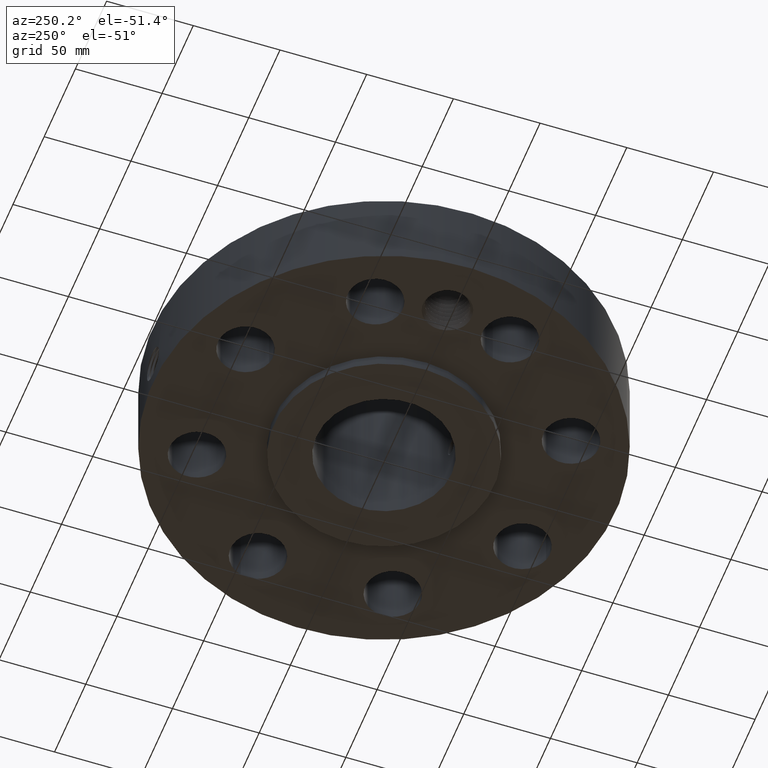
[diagram: clean part render]
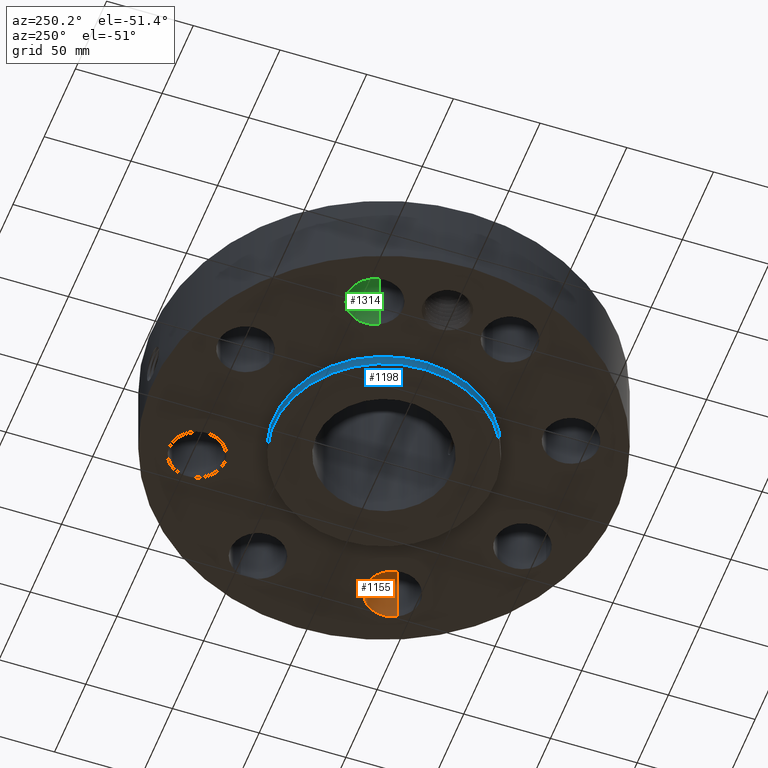
[diagram: same view with three faces highlighted in distinct colors, each labeled with its STEP entity id]
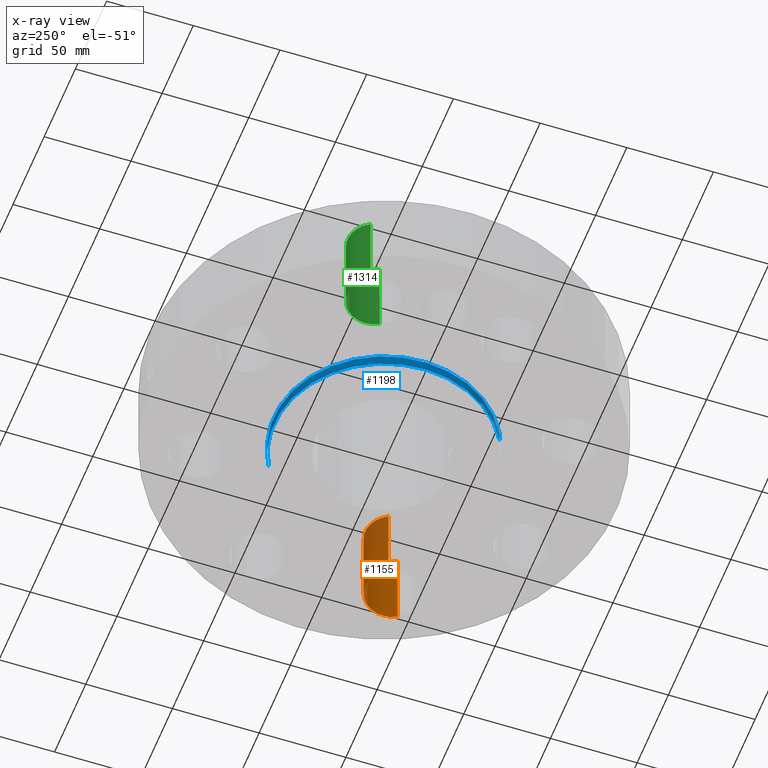
[diagram: x-ray of the same camera — body ghosted, the three highlighted faces saturated]
A machine part, auxiliary view with three faces highlighted in distinct colors.
The next image is the same camera in x-ray (body ghosted, the three faces saturated) — at least one of them is partly hidden behind the body in this view.
Their STEP definitions:

[orange] entity #1155 — the highlighted cylindrical surface (edge-blend (fillet) strip) has radius 15.875 mm, axis along (0, -0, -1).
#240=AXIS2_PLACEMENT_3D('Circle Axis2P3D',#238,#239,$) ;
#555=AXIS2_PLACEMENT_3D('Circle Axis2P3D',#553,#554,$) ;
#1130=AXIS2_PLACEMENT_3D('Cylinder Axis2P3D',#1127,#1128,#1129) ;
#233=CARTESIAN_POINT('Vertex',(4.24400723124,-1.8303746911,0.250000000001)) ;
#235=CARTESIAN_POINT('Vertex',(3.14702902888,-1.23109276784,0.250000000001)) ;
#238=CARTESIAN_POINT('Axis2P3D Location',(3.69551813006,-1.53073372947,0.250000000001)) ;
#553=CARTESIAN_POINT('Axis2P3D Location',(3.69551813006,-1.53073372947,2.13000000001)) ;
#557=CARTESIAN_POINT('Vertex',(3.14702902888,-1.23109276784,2.13000000001)) ;
#559=CARTESIAN_POINT('Vertex',(4.24400723124,-1.8303746911,2.13000000001)) ;
#1127=CARTESIAN_POINT('Axis2P3D Location',(3.69551813006,-1.53073372947,2.12606299213)) ;
#1132=CARTESIAN_POINT('Line Origine',(4.24400723124,-1.8303746911,1.19)) ;
#1137=CARTESIAN_POINT('Line Origine',(3.14702902888,-1.23109276784,1.19)) ;
#239=DIRECTION('Axis2P3D Direction',(0.,0.,-0.0393700787402)) ;
#554=DIRECTION('Axis2P3D Direction',(0.,0.,-0.0393700787402)) ;
#1128=DIRECTION('Axis2P3D Direction',(0.,-0.,-0.0393700787402)) ;
#1129=DIRECTION('Axis2P3D XDirection',(-0.0345504945626,0.0188750212049,0.)) ;
#1133=DIRECTION('Vector Direction',(0.,0.,-0.0393700787402)) ;
#1138=DIRECTION('Vector Direction',(0.,0.,-0.0393700787402)) ;
#1134=VECTOR('Line Direction',#1133,0.0393700787402) ;
#1139=VECTOR('Line Direction',#1138,0.0393700787402) ;
#1150=ORIENTED_EDGE('',*,*,#1141,.F.) ;
#1151=ORIENTED_EDGE('',*,*,#242,.T.) ;
#1152=ORIENTED_EDGE('',*,*,#1136,.T.) ;
#1153=ORIENTED_EDGE('',*,*,#561,.F.) ;
#1155=ADVANCED_FACE('PartBody',(#1154),#1131,.F.) ;
#241=CIRCLE('generated circle',#240,0.625000000002) ;
#556=CIRCLE('generated circle',#555,0.625000000002) ;
#1131=CYLINDRICAL_SURFACE('generated cylinder',#1130,0.625000000002) ;
#242=EDGE_CURVE('',#236,#234,#241,.T.) ;
#561=EDGE_CURVE('',#558,#560,#556,.T.) ;
#1136=EDGE_CURVE('',#234,#560,#1135,.F.) ;
#1141=EDGE_CURVE('',#236,#558,#1140,.F.) ;
#1149=EDGE_LOOP('',(#1150,#1151,#1152,#1153)) ;
#1154=FACE_OUTER_BOUND('',#1149,.T.) ;
#1135=LINE('Line',#1132,#1134) ;
#1140=LINE('Line',#1137,#1139) ;
#234=VERTEX_POINT('',#233) ;
#236=VERTEX_POINT('',#235) ;
#558=VERTEX_POINT('',#557) ;
#560=VERTEX_POINT('',#559) ;

[blue] entity #1198 — the highlighted cylindrical surface (partial cylindrical patch) has radius 63.5 mm, axis along (0, 0, -1).
#258=AXIS2_PLACEMENT_3D('Circle Axis2P3D',#256,#257,$) ;
#1159=AXIS2_PLACEMENT_3D('Cylinder Axis2P3D',#1156,#1157,#1158) ;
#1189=AXIS2_PLACEMENT_3D('Circle Axis2P3D',#1187,#1188,$) ;
#251=CARTESIAN_POINT('Vertex',(1.19856384652,2.19395640473,0.250000000001)) ;
#253=CARTESIAN_POINT('Vertex',(-1.19856384652,-2.19395640473,0.250000000001)) ;
#256=CARTESIAN_POINT('Axis2P3D Location',(0.,0.,0.250000000001)) ;
#1156=CARTESIAN_POINT('Axis2P3D Location',(0.,0.,2.43500000001)) ;
#1165=CARTESIAN_POINT('Vertex',(1.19856384652,2.19395640473,2.79741234551E-016)) ;
#1167=CARTESIAN_POINT('Vertex',(-1.19856384652,-2.19395640473,2.79741234551E-016)) ;
#1170=CARTESIAN_POINT('Line Origine',(1.19856384652,2.19395640473,0.125000000001)) ;
#1175=CARTESIAN_POINT('Line Origine',(-1.19856384652,-2.19395640473,0.125000000001)) ;
#1187=CARTESIAN_POINT('Axis2P3D Location',(0.,0.,2.79741234551E-016)) ;
#257=DIRECTION('Axis2P3D Direction',(0.,0.,-0.0393700787402)) ;
#1157=DIRECTION('Axis2P3D Direction',(0.,0.,-0.0393700787402)) ;
#1158=DIRECTION('Axis2P3D XDirection',(-0.0188750212049,-0.0345504945626,0.)) ;
#1171=DIRECTION('Vector Direction',(0.,0.,-0.0393700787402)) ;
#1176=DIRECTION('Vector Direction',(0.,0.,-0.0393700787402)) ;
#1188=DIRECTION('Axis2P3D Direction',(0.,0.,-0.0393700787402)) ;
#1172=VECTOR('Line Direction',#1171,0.0393700787402) ;
#1177=VECTOR('Line Direction',#1176,0.0393700787402) ;
#1193=ORIENTED_EDGE('',*,*,#1191,.F.) ;
#1194=ORIENTED_EDGE('',*,*,#1179,.T.) ;
#1195=ORIENTED_EDGE('',*,*,#260,.T.) ;
#1196=ORIENTED_EDGE('',*,*,#1174,.F.) ;
#1198=ADVANCED_FACE('PartBody',(#1197),#1160,.T.) ;
#259=CIRCLE('generated circle',#258,2.50000000001) ;
#1190=CIRCLE('generated circle',#1189,2.50000000001) ;
#1160=CYLINDRICAL_SURFACE('generated cylinder',#1159,2.50000000001) ;
#260=EDGE_CURVE('',#254,#252,#259,.T.) ;
#1174=EDGE_CURVE('',#1166,#252,#1173,.F.) ;
#1179=EDGE_CURVE('',#1168,#254,#1178,.F.) ;
#1191=EDGE_CURVE('',#1168,#1166,#1190,.T.) ;
#1192=EDGE_LOOP('',(#1193,#1194,#1195,#1196)) ;
#1197=FACE_OUTER_BOUND('',#1192,.T.) ;
#1173=LINE('Line',#1170,#1172) ;
#1178=LINE('Line',#1175,#1177) ;
#252=VERTEX_POINT('',#251) ;
#254=VERTEX_POINT('',#253) ;
#1166=VERTEX_POINT('',#1165) ;
#1168=VERTEX_POINT('',#1167) ;

[green] entity #1314 — the highlighted cylindrical surface (edge-blend (fillet) strip) has radius 15.875 mm, axis along (-0, 0, -1).
#330=AXIS2_PLACEMENT_3D('Circle Axis2P3D',#328,#329,$) ;
#645=AXIS2_PLACEMENT_3D('Circle Axis2P3D',#643,#644,$) ;
#1289=AXIS2_PLACEMENT_3D('Cylinder Axis2P3D',#1286,#1287,#1288) ;
#323=CARTESIAN_POINT('Vertex',(-3.14702902888,1.23109276784,0.250000000001)) ;
#325=CARTESIAN_POINT('Vertex',(-4.24400723124,1.8303746911,0.250000000001)) ;
#328=CARTESIAN_POINT('Axis2P3D Location',(-3.69551813006,1.53073372947,0.250000000001)) ;
#643=CARTESIAN_POINT('Axis2P3D Location',(-3.69551813006,1.53073372947,2.13000000001)) ;
#647=CARTESIAN_POINT('Vertex',(-4.24400723124,1.8303746911,2.13000000001)) ;
#649=CARTESIAN_POINT('Vertex',(-3.14702902888,1.23109276784,2.13000000001)) ;
#1286=CARTESIAN_POINT('Axis2P3D Location',(-3.69551813006,1.53073372947,2.12606299213)) ;
#1291=CARTESIAN_POINT('Line Origine',(-3.14702902888,1.23109276784,1.19)) ;
#1296=CARTESIAN_POINT('Line Origine',(-4.24400723124,1.8303746911,1.19)) ;
#329=DIRECTION('Axis2P3D Direction',(0.,0.,-0.0393700787402)) ;
#644=DIRECTION('Axis2P3D Direction',(0.,0.,-0.0393700787402)) ;
#1287=DIRECTION('Axis2P3D Direction',(-0.,0.,-0.0393700787402)) ;
#1288=DIRECTION('Axis2P3D XDirection',(-0.0345504945626,0.0188750212049,0.)) ;
#1292=DIRECTION('Vector Direction',(0.,0.,-0.0393700787402)) ;
#1297=DIRECTION('Vector Direction',(0.,0.,-0.0393700787402)) ;
#1293=VECTOR('Line Direction',#1292,0.0393700787402) ;
#1298=VECTOR('Line Direction',#1297,0.0393700787402) ;
#1309=ORIENTED_EDGE('',*,*,#1300,.F.) ;
#1310=ORIENTED_EDGE('',*,*,#332,.T.) ;
#1311=ORIENTED_EDGE('',*,*,#1295,.T.) ;
#1312=ORIENTED_EDGE('',*,*,#651,.F.) ;
#1314=ADVANCED_FACE('PartBody',(#1313),#1290,.F.) ;
#331=CIRCLE('generated circle',#330,0.625000000002) ;
#646=CIRCLE('generated circle',#645,0.625000000002) ;
#1290=CYLINDRICAL_SURFACE('generated cylinder',#1289,0.625000000002) ;
#332=EDGE_CURVE('',#326,#324,#331,.T.) ;
#651=EDGE_CURVE('',#648,#650,#646,.T.) ;
#1295=EDGE_CURVE('',#324,#650,#1294,.F.) ;
#1300=EDGE_CURVE('',#326,#648,#1299,.F.) ;
#1308=EDGE_LOOP('',(#1309,#1310,#1311,#1312)) ;
#1313=FACE_OUTER_BOUND('',#1308,.T.) ;
#1294=LINE('Line',#1291,#1293) ;
#1299=LINE('Line',#1296,#1298) ;
#324=VERTEX_POINT('',#323) ;
#326=VERTEX_POINT('',#325) ;
#648=VERTEX_POINT('',#647) ;
#650=VERTEX_POINT('',#649) ;